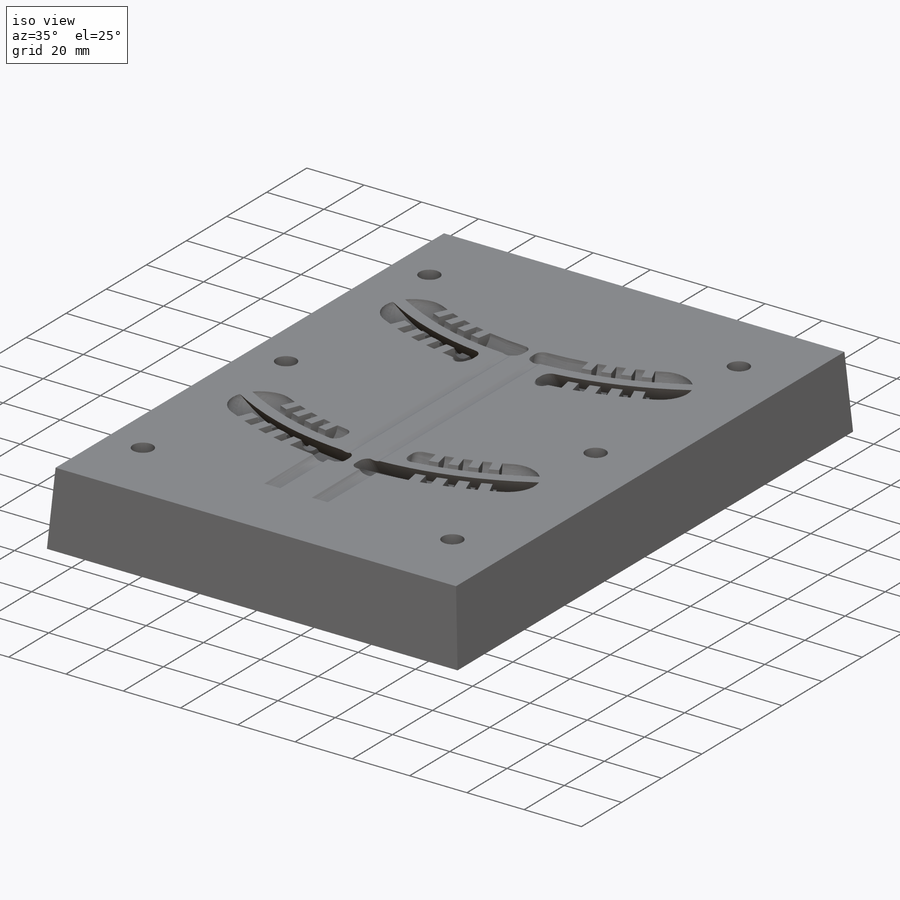
[diagram: iso view]
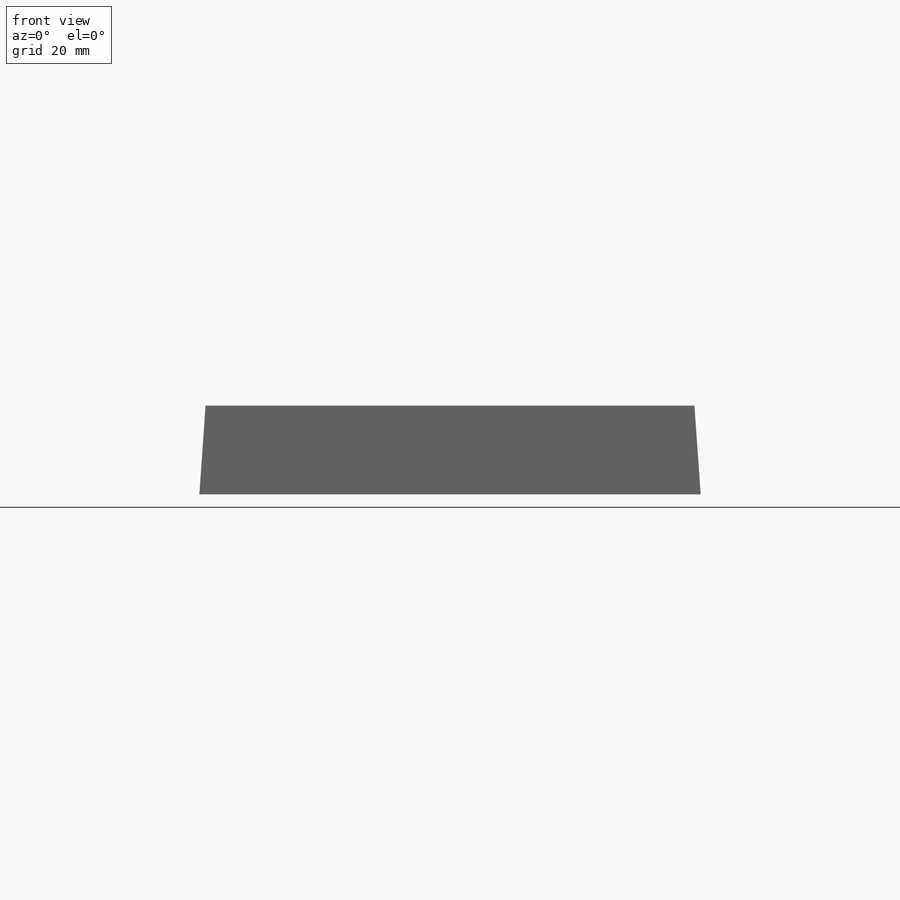
[diagram: front view]
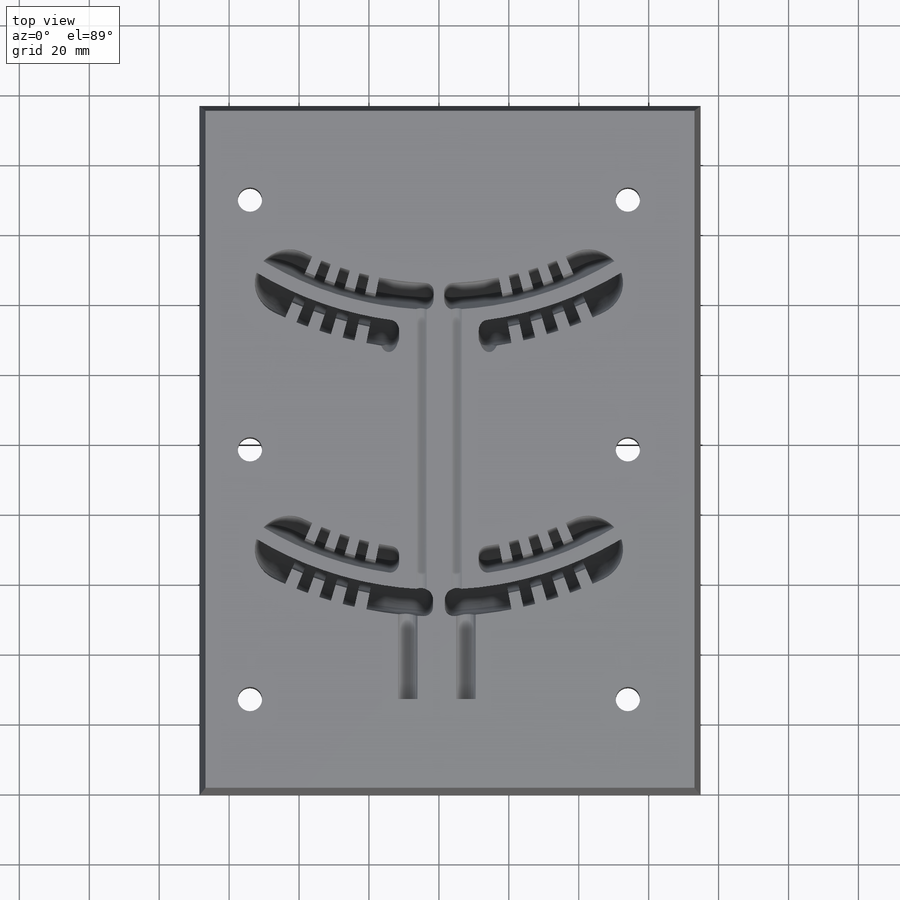
[diagram: top view]
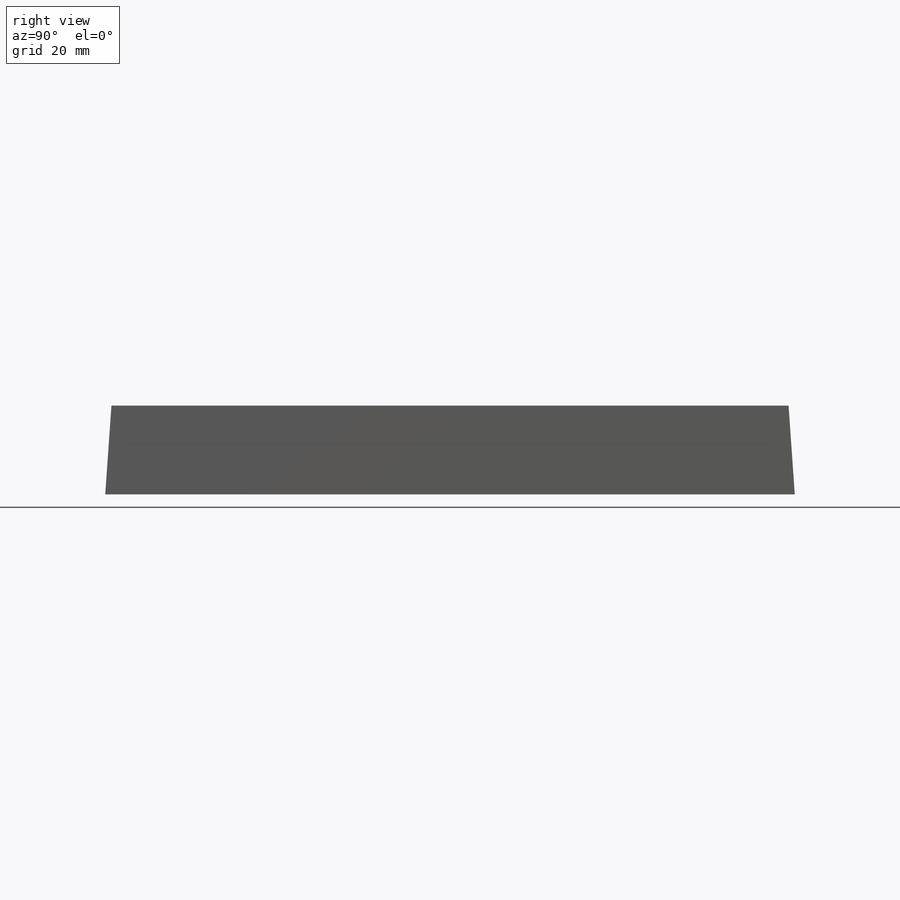
[diagram: right view]
SOLIDWORKS PART (.sldprt)
format: sldprt  version: not decoded by parser v0  size: 7,992,320 bytes
history: native  units: mm
features: sketch x9, extrude x3, boolean_combine x2, sweep x2, cut_extrude x2, delete_body x2, material x1, chamfer x1 + 2 further entries (+23 scaffold rows collapsed; 6 parser-record rows omitted)
feature tree (53):
  scaffold x23  (default folders/planes/origin — collapsed)
  material  "Material <not specified>"
  "makerbot_body_02"
  parser-record x6  (decoder bookkeeping rows leaked as tree rows — omitted from the tree; the rows remain in map.json)
  sketch  "Sketch1"  dims[D1=0.0mm]
  extrude  "Boss-Extrude1"  Depth=25.4mm
  sketch  "Sketch2"  dims[D1=25.4mm D2=12.7mm D3=19.05mm]
  extrude  "Boss-Extrude2"  Depth=25.4mm
  sketch  "Sketch3"  dims[D1=6.985mm]
  boolean_combine  "Combine2"
  sketch  "Sketch5"  dims[D1=6.35mm D5=6.35mm D2=12.7mm D3=9.525mm D4=6.35mm]
  sketch  "Sketch6"  dims[D1=3.175mm]
  sweep  "Cut-Sweep1"
  cut_extrude  "Cut-Extrude1"  [1 undecoded]
  delete_body  "Body-Delete1"
  boolean_combine  "SurfaceCut2"
  "makerbot_internals"
  extrude  "Boss-Extrude3"  [1 undecoded]
  sketch  "Sketch2<2>"
  cut_extrude  "Cut-Extrude2"  [1 undecoded]
  sketch  "Sketch3<2>"
  delete_body  "Draft2"
  sweep  "Cut-Sweep2"
  sketch  "Sketch6<2>"
  sketch  "Sketch5<3>"
  chamfer  "Chamfer1"  Distance=1.27mm Angle=45deg
decode coverage: 8 of 21 modeling features carry decoded parameters; 2 rows unclassified (native names shown)
note: 3 parameter values undecoded
summary: no parameter record found for 3 features
note: suppression state not decoded; provenance and decode notes live in map.json
